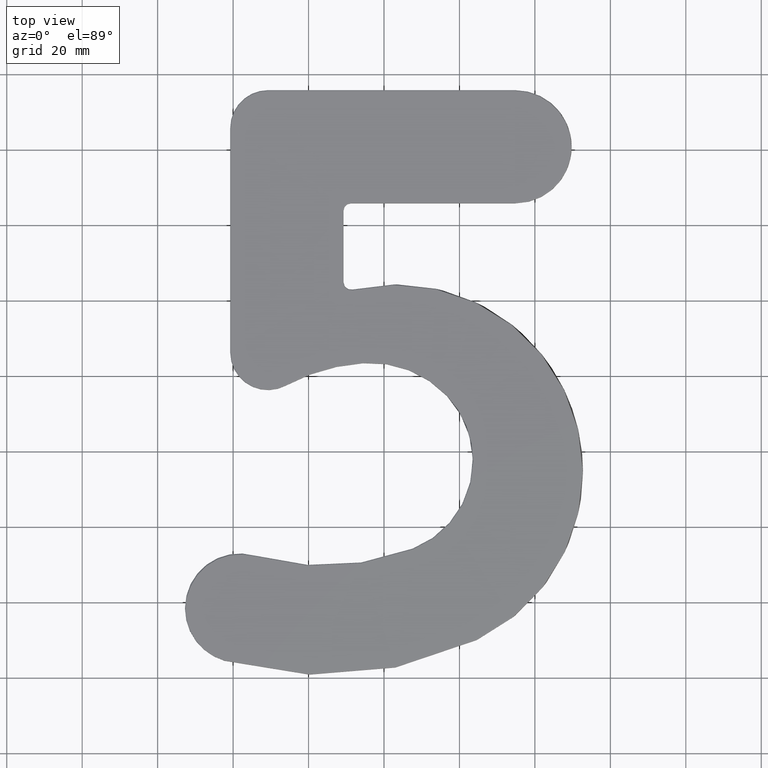
[diagram: clean part render]
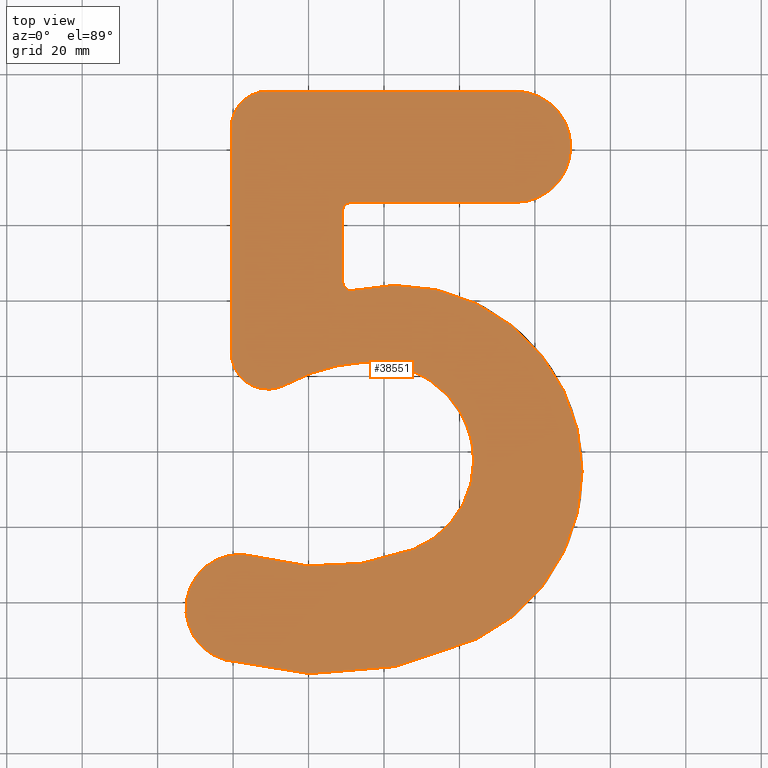
[diagram: same view with one face highlighted and labeled with its STEP entity id]
A machine part, top view. The second image highlights one B-rep face of the part: STEP entity #38551.
In plain terms, the highlighted planar face has unit normal (0, 0, 1).
Its self-contained STEP definition (entity closure, byte-faithful):
#145 = ORIENTED_EDGE ( 'NONE', *, *, #6844, .T. ) ;
#153 = CIRCLE ( 'NONE', #30037, 65.25000000000000000 ) ;
#212 = CARTESIAN_POINT ( 'NONE',  ( -42.23115545406682259, 3.983048964127040570, 2.000000000000000000 ) ) ;
#233 = VECTOR ( 'NONE', #18753, 1000.000000000000000 ) ;
#698 = ORIENTED_EDGE ( 'NONE', *, *, #5548, .T. ) ;
#770 = CIRCLE ( 'NONE', #35094, 25.25000000000002132 ) ;
#991 = EDGE_CURVE ( 'NONE', #18984, #23266, #36201, .T. ) ;
#1713 = CARTESIAN_POINT ( 'NONE',  ( -16.03934325625869306, 94.00000000000000000, 2.000000000000000000 ) ) ;
#2296 = CIRCLE ( 'NONE', #18981, 28.25000000000002487 ) ;
#2363 = CARTESIAN_POINT ( 'NONE',  ( -8.749999999999973355, 125.2500000000000000, 2.000000000000000000 ) ) ;
#2593 = LINE ( 'NONE', #21881, #233 ) ;
#2718 = VERTEX_POINT ( 'NONE', #38461 ) ;
#2940 = EDGE_CURVE ( 'NONE', #24917, #29212, #2593, .T. ) ;
#3058 = VECTOR ( 'NONE', #5091, 1000.000000000000000 ) ;
#3216 = ORIENTED_EDGE ( 'NONE', *, *, #11414, .T. ) ;
#3676 = EDGE_CURVE ( 'NONE', #22181, #35679, #21605, .T. ) ;
#3820 = AXIS2_PLACEMENT_3D ( 'NONE', #25812, #38090, #16388 ) ;
#4026 = DIRECTION ( 'NONE',  ( 1.000000000000000000, 0.000000000000000000, 0.000000000000000000 ) ) ;
#4094 = DIRECTION ( 'NONE',  ( 0.000000000000000000, 0.000000000000000000, 1.000000000000000000 ) ) ;
#4494 = EDGE_CURVE ( 'NONE', #11066, #21247, #4930, .T. ) ;
#4794 = DIRECTION ( 'NONE',  ( 1.000000000000000000, 0.000000000000000000, 0.000000000000000000 ) ) ;
#4930 = CIRCLE ( 'NONE', #28218, 50.25000000000000000 ) ;
#5091 = DIRECTION ( 'NONE',  ( -2.332401312237726385E-16, -1.000000000000000000, 0.000000000000000000 ) ) ;
#5095 = EDGE_CURVE ( 'NONE', #7348, #28619, #153, .T. ) ;
#5429 = AXIS2_PLACEMENT_3D ( 'NONE', #24867, #12507, #12378 ) ;
#5548 = EDGE_CURVE ( 'NONE', #2718, #10493, #16318, .T. ) ;
#5867 = VECTOR ( 'NONE', #17457, 1000.000000000000000 ) ;
#5879 = ORIENTED_EDGE ( 'NONE', *, *, #991, .T. ) ;
#6509 = DIRECTION ( 'NONE',  ( 0.000000000000000000, 0.000000000000000000, 1.000000000000000000 ) ) ;
#6770 = AXIS2_PLACEMENT_3D ( 'NONE', #26812, #12050, #17816 ) ;
#6844 = EDGE_CURVE ( 'NONE', #29212, #22181, #10036, .T. ) ;
#7069 = CARTESIAN_POINT ( 'NONE',  ( -34.26884454593314899, 31.34820207903241140, 2.000000000000000000 ) ) ;
#7232 = EDGE_LOOP ( 'NONE', ( #7506, #33227, #19710, #33178, #21847, #145, #24683, #32050, #30361, #9914, #30741, #3216, #8642, #18457, #21069, #698, #34907, #15845, #5879 ) ) ;
#7348 = VERTEX_POINT ( 'NONE', #19251 ) ;
#7506 = ORIENTED_EDGE ( 'NONE', *, *, #24399, .T. ) ;
#8642 = ORIENTED_EDGE ( 'NONE', *, *, #5095, .T. ) ;
#9037 = CARTESIAN_POINT ( 'NONE',  ( -10.99999999999998934, 122.9999999999999858, 2.000000000000000000 ) ) ;
#9319 = DIRECTION ( 'NONE',  ( 0.000000000000000000, 0.000000000000000000, 1.000000000000000000 ) ) ;
#9432 = CARTESIAN_POINT ( 'NONE',  ( -16.03934325625869306, 94.00000000000000000, 2.000000000000000000 ) ) ;
#9445 = CIRCLE ( 'NONE', #5429, 14.75000000000002665 ) ;
#9914 = ORIENTED_EDGE ( 'NONE', *, *, #10817, .T. ) ;
#10036 = CIRCLE ( 'NONE', #31079, 9.750000000000005329 ) ;
#10165 = VERTEX_POINT ( 'NONE', #2363 ) ;
#10493 = VERTEX_POINT ( 'NONE', #18359 ) ;
#10516 = EDGE_CURVE ( 'NONE', #10493, #29763, #24220, .T. ) ;
#10807 = EDGE_CURVE ( 'NONE', #38828, #24917, #9445, .T. ) ;
#10817 = EDGE_CURVE ( 'NONE', #21247, #36638, #2296, .T. ) ;
#11066 = VERTEX_POINT ( 'NONE', #17695 ) ;
#11414 = EDGE_CURVE ( 'NONE', #18073, #7348, #28454, .T. ) ;
#12050 = DIRECTION ( 'NONE',  ( -0.000000000000000000, -0.000000000000000000, -1.000000000000000000 ) ) ;
#12054 = DIRECTION ( 'NONE',  ( 3.671206628785114533E-16, 1.000000000000000000, -0.000000000000000000 ) ) ;
#12068 = DIRECTION ( 'NONE',  ( 0.000000000000000000, 0.000000000000000000, 1.000000000000000000 ) ) ;
#12083 = CARTESIAN_POINT ( 'NONE',  ( 3.187377450509216725, 53.93737745050921006, 2.000000000000000000 ) ) ;
#12090 = AXIS2_PLACEMENT_3D ( 'NONE', #21399, #27288, #36753 ) ;
#12378 = DIRECTION ( 'NONE',  ( 1.000000000000000000, 0.000000000000000000, 0.000000000000000000 ) ) ;
#12507 = DIRECTION ( 'NONE',  ( 0.000000000000000000, 0.000000000000000000, 1.000000000000000000 ) ) ;
#13152 = EDGE_CURVE ( 'NONE', #35679, #11066, #16711, .T. ) ;
#13190 = AXIS2_PLACEMENT_3D ( 'NONE', #24286, #12068, #30567 ) ;
#14649 = CARTESIAN_POINT ( 'NONE',  ( 34.75000000000000711, 125.2499999999999716, 2.000000000000000000 ) ) ;
#15531 = EDGE_CURVE ( 'NONE', #28619, #22661, #34053, .T. ) ;
#15566 = DIRECTION ( 'NONE',  ( -0.000000000000000000, -0.000000000000000000, -1.000000000000000000 ) ) ;
#15845 = ORIENTED_EDGE ( 'NONE', *, *, #23224, .T. ) ;
#16063 = DIRECTION ( 'NONE',  ( 0.000000000000000000, 0.000000000000000000, 1.000000000000000000 ) ) ;
#16318 = CIRCLE ( 'NONE', #24433, 49.31262254949079704 ) ;
#16388 = DIRECTION ( 'NONE',  ( 1.000000000000000000, 0.000000000000000000, 0.000000000000000000 ) ) ;
#16711 = CIRCLE ( 'NONE', #38401, 9.750000000000001776 ) ;
#17457 = DIRECTION ( 'NONE',  ( 1.000000000000000000, -6.380592095546879231E-16, 0.000000000000000000 ) ) ;
#17695 = CARTESIAN_POINT ( 'NONE',  ( -26.10683252044932701, 76.92658202600365769, 2.000000000000000000 ) ) ;
#17816 = DIRECTION ( 'NONE',  ( 1.000000000000000000, 0.000000000000000000, 0.000000000000000000 ) ) ;
#17825 = LINE ( 'NONE', #14649, #5867 ) ;
#17848 = CARTESIAN_POINT ( 'NONE',  ( -40.49999999999998579, 144.9999999999999432, 2.000000000000000000 ) ) ;
#18069 = DIRECTION ( 'NONE',  ( 1.000000000000000000, 0.000000000000000000, 0.000000000000000000 ) ) ;
#18073 = VERTEX_POINT ( 'NONE', #31583 ) ;
#18161 = CARTESIAN_POINT ( 'NONE',  ( -30.74999999999998224, 145.0000000000000000, 2.000000000000000000 ) ) ;
#18359 = CARTESIAN_POINT ( 'NONE',  ( 52.50000000000001421, 53.93737745050921006, 2.000000000000000000 ) ) ;
#18457 = ORIENTED_EDGE ( 'NONE', *, *, #15531, .T. ) ;
#18500 = AXIS2_PLACEMENT_3D ( 'NONE', #36290, #21216, #18069 ) ;
#18753 = DIRECTION ( 'NONE',  ( -1.000000000000000000, -4.237492460401365926E-16, 0.000000000000000000 ) ) ;
#18981 = AXIS2_PLACEMENT_3D ( 'NONE', #33820, #15566, #36892 ) ;
#18984 = VERTEX_POINT ( 'NONE', #36072 ) ;
#19031 = VECTOR ( 'NONE', #12054, 1000.000000000000000 ) ;
#19144 = DIRECTION ( 'NONE',  ( 1.000000000000000000, 0.000000000000000000, -0.000000000000000000 ) ) ;
#19251 = CARTESIAN_POINT ( 'NONE',  ( 7.732396754079313261, 33.23432813766559946, 2.000000000000000000 ) ) ;
#19486 = CARTESIAN_POINT ( 'NONE',  ( -1.466629073676021466, 56.74901341772604724, 2.000000000000000000 ) ) ;
#19706 = DIRECTION ( 'NONE',  ( 1.000000000000000000, 0.000000000000000000, 0.000000000000000000 ) ) ;
#19710 = ORIENTED_EDGE ( 'NONE', *, *, #35211, .T. ) ;
#19999 = DIRECTION ( 'NONE',  ( -0.000000000000000000, -0.000000000000000000, -1.000000000000000000 ) ) ;
#21069 = ORIENTED_EDGE ( 'NONE', *, *, #22994, .T. ) ;
#21216 = DIRECTION ( 'NONE',  ( -0.000000000000000000, -0.000000000000000000, -1.000000000000000000 ) ) ;
#21247 = VERTEX_POINT ( 'NONE', #38016 ) ;
#21297 = FACE_OUTER_BOUND ( 'NONE', #7232, .T. ) ;
#21399 = CARTESIAN_POINT ( 'NONE',  ( -8.749999999999996447, 104.0991463964438566, 2.000000000000000000 ) ) ;
#21551 = DIRECTION ( 'NONE',  ( 1.000000000000000000, 0.000000000000000000, 0.000000000000000000 ) ) ;
#21605 = LINE ( 'NONE', #36025, #3058 ) ;
#21847 = ORIENTED_EDGE ( 'NONE', *, *, #2940, .T. ) ;
#21881 = CARTESIAN_POINT ( 'NONE',  ( -30.74999999999991473, 154.7500000000000000, 2.000000000000000000 ) ) ;
#22181 = VERTEX_POINT ( 'NONE', #17848 ) ;
#22661 = VERTEX_POINT ( 'NONE', #212 ) ;
#22994 = EDGE_CURVE ( 'NONE', #22661, #2718, #23258, .T. ) ;
#23023 = DIRECTION ( 'NONE',  ( -0.000000000000000000, -0.000000000000000000, -1.000000000000000000 ) ) ;
#23224 = EDGE_CURVE ( 'NONE', #29763, #18984, #32841, .T. ) ;
#23258 = CIRCLE ( 'NONE', #36084, 93.75000000000000000 ) ;
#23266 = VERTEX_POINT ( 'NONE', #9037 ) ;
#24176 = DIRECTION ( 'NONE',  ( 0.000000000000000000, 0.000000000000000000, 1.000000000000000000 ) ) ;
#24220 = CIRCLE ( 'NONE', #3820, 49.31262254949079704 ) ;
#24286 = CARTESIAN_POINT ( 'NONE',  ( -38.24999999999999289, 17.66562552157972732, 2.000000000000000000 ) ) ;
#24399 = EDGE_CURVE ( 'NONE', #23266, #10165, #27967, .T. ) ;
#24433 = AXIS2_PLACEMENT_3D ( 'NONE', #12083, #24176, #36471 ) ;
#24541 = CARTESIAN_POINT ( 'NONE',  ( 49.50000000000003553, 140.0000000000000000, 2.000000000000000000 ) ) ;
#24683 = ORIENTED_EDGE ( 'NONE', *, *, #3676, .T. ) ;
#24867 = CARTESIAN_POINT ( 'NONE',  ( 34.75000000000000711, 140.0000000000000000, 2.000000000000000000 ) ) ;
#24917 = VERTEX_POINT ( 'NONE', #37309 ) ;
#24956 = CARTESIAN_POINT ( 'NONE',  ( -2.176661664303638055, 32.74050477540723136, 2.000000000000000000 ) ) ;
#25449 = AXIS2_PLACEMENT_3D ( 'NONE', #25670, #4094, #19706 ) ;
#25463 = DIRECTION ( 'NONE',  ( 1.000000000000000000, 0.000000000000000000, 0.000000000000000000 ) ) ;
#25670 = CARTESIAN_POINT ( 'NONE',  ( 34.75000000000000711, 140.0000000000000000, 2.000000000000000000 ) ) ;
#25812 = CARTESIAN_POINT ( 'NONE',  ( 3.187377450509216725, 53.93737745050921006, 2.000000000000000000 ) ) ;
#26812 = CARTESIAN_POINT ( 'NONE',  ( -8.749999999999989342, 123.0000000000000000, 2.000000000000000000 ) ) ;
#27288 = DIRECTION ( 'NONE',  ( -0.000000000000000000, -0.000000000000000000, -1.000000000000000000 ) ) ;
#27397 = EDGE_CURVE ( 'NONE', #10165, #30210, #17825, .T. ) ;
#27422 = CIRCLE ( 'NONE', #25449, 14.75000000000002665 ) ;
#27967 = CIRCLE ( 'NONE', #6770, 2.250000000000001332 ) ;
#28047 = CARTESIAN_POINT ( 'NONE',  ( -40.49999999999998579, 85.49999999999998579, 2.000000000000000000 ) ) ;
#28218 = AXIS2_PLACEMENT_3D ( 'NONE', #24956, #37482, #4026 ) ;
#28454 = CIRCLE ( 'NONE', #18500, 25.25000000000002132 ) ;
#28606 = DIRECTION ( 'NONE',  ( 1.000000000000000000, 0.000000000000000000, 0.000000000000000000 ) ) ;
#28619 = VERTEX_POINT ( 'NONE', #7069 ) ;
#28680 = CARTESIAN_POINT ( 'NONE',  ( 34.75000000000000711, 140.0000000000000000, 2.000000000000000000 ) ) ;
#29212 = VERTEX_POINT ( 'NONE', #32667 ) ;
#29677 = CARTESIAN_POINT ( 'NONE',  ( 34.75000000000000711, 125.2499999999999716, 2.000000000000000000 ) ) ;
#29763 = VERTEX_POINT ( 'NONE', #36578 ) ;
#30037 = AXIS2_PLACEMENT_3D ( 'NONE', #1713, #23023, #4794 ) ;
#30210 = VERTEX_POINT ( 'NONE', #29677 ) ;
#30292 = CARTESIAN_POINT ( 'NONE',  ( -10.99999999999998934, 122.9999999999999858, 2.000000000000000000 ) ) ;
#30361 = ORIENTED_EDGE ( 'NONE', *, *, #4494, .T. ) ;
#30567 = DIRECTION ( 'NONE',  ( 1.000000000000000000, 0.000000000000000000, 0.000000000000000000 ) ) ;
#30741 = ORIENTED_EDGE ( 'NONE', *, *, #39573, .T. ) ;
#30866 = DIRECTION ( 'NONE',  ( 1.000000000000000000, 0.000000000000000000, 0.000000000000000000 ) ) ;
#31079 = AXIS2_PLACEMENT_3D ( 'NONE', #18161, #9319, #21551 ) ;
#31223 = AXIS2_PLACEMENT_3D ( 'NONE', #28680, #16063, #19144 ) ;
#31583 = CARTESIAN_POINT ( 'NONE',  ( 23.78337092632400029, 56.74901341772604724, 2.000000000000000000 ) ) ;
#31905 = PLANE ( 'NONE',  #31223 ) ;
#31965 = DIRECTION ( 'NONE',  ( 0.000000000000000000, 0.000000000000000000, 1.000000000000000000 ) ) ;
#32050 = ORIENTED_EDGE ( 'NONE', *, *, #13152, .T. ) ;
#32667 = CARTESIAN_POINT ( 'NONE',  ( -30.74999999999991473, 154.7500000000000000, 2.000000000000000000 ) ) ;
#32841 = CIRCLE ( 'NONE', #12090, 2.250000000000002665 ) ;
#33178 = ORIENTED_EDGE ( 'NONE', *, *, #10807, .T. ) ;
#33227 = ORIENTED_EDGE ( 'NONE', *, *, #27397, .T. ) ;
#33324 = CARTESIAN_POINT ( 'NONE',  ( 16.90634894181395254, 74.06941118574290783, 2.000000000000000000 ) ) ;
#33820 = CARTESIAN_POINT ( 'NONE',  ( -3.649557154724337504, 54.69114437598148015, 2.000000000000000000 ) ) ;
#34053 = CIRCLE ( 'NONE', #13190, 14.24999999999999822 ) ;
#34907 = ORIENTED_EDGE ( 'NONE', *, *, #10516, .T. ) ;
#35094 = AXIS2_PLACEMENT_3D ( 'NONE', #19486, #19999, #25463 ) ;
#35211 = EDGE_CURVE ( 'NONE', #30210, #38828, #27422, .T. ) ;
#35679 = VERTEX_POINT ( 'NONE', #28047 ) ;
#36025 = CARTESIAN_POINT ( 'NONE',  ( -40.49999999999998579, 85.49999999999998579, 2.000000000000000000 ) ) ;
#36072 = CARTESIAN_POINT ( 'NONE',  ( -11.00000000000000000, 104.0991463964438566, 2.000000000000000000 ) ) ;
#36084 = AXIS2_PLACEMENT_3D ( 'NONE', #9432, #6509, #30866 ) ;
#36201 = LINE ( 'NONE', #30292, #19031 ) ;
#36290 = CARTESIAN_POINT ( 'NONE',  ( -1.466629073676021466, 56.74901341772604724, 2.000000000000000000 ) ) ;
#36471 = DIRECTION ( 'NONE',  ( 1.000000000000000000, 0.000000000000000000, 0.000000000000000000 ) ) ;
#36578 = CARTESIAN_POINT ( 'NONE',  ( -8.229097494743081498, 101.9102744084059111, 2.000000000000000000 ) ) ;
#36638 = VERTEX_POINT ( 'NONE', #33324 ) ;
#36753 = DIRECTION ( 'NONE',  ( 1.000000000000000000, 0.000000000000000000, 0.000000000000000000 ) ) ;
#36892 = DIRECTION ( 'NONE',  ( 1.000000000000000000, 1.719371940791170115E-15, 0.000000000000000000 ) ) ;
#37309 = CARTESIAN_POINT ( 'NONE',  ( 34.75000000000000711, 154.7500000000000284, 2.000000000000000000 ) ) ;
#37482 = DIRECTION ( 'NONE',  ( -0.000000000000000000, -0.000000000000000000, -1.000000000000000000 ) ) ;
#37818 = CARTESIAN_POINT ( 'NONE',  ( -30.74999999999997868, 85.49999999999998579, 2.000000000000000000 ) ) ;
#38016 = CARTESIAN_POINT ( 'NONE',  ( -5.540888864014536175, 82.87776113580977722, 2.000000000000000000 ) ) ;
#38090 = DIRECTION ( 'NONE',  ( 0.000000000000000000, 0.000000000000000000, 1.000000000000000000 ) ) ;
#38401 = AXIS2_PLACEMENT_3D ( 'NONE', #37818, #31965, #28606 ) ;
#38461 = CARTESIAN_POINT ( 'NONE',  ( 24.52347052065636390, 9.479466172418723247, 2.000000000000000000 ) ) ;
#38551 = ADVANCED_FACE ( 'NONE', ( #21297 ), #31905, .T. ) ;
#38828 = VERTEX_POINT ( 'NONE', #24541 ) ;
#39573 = EDGE_CURVE ( 'NONE', #36638, #18073, #770, .T. ) ;